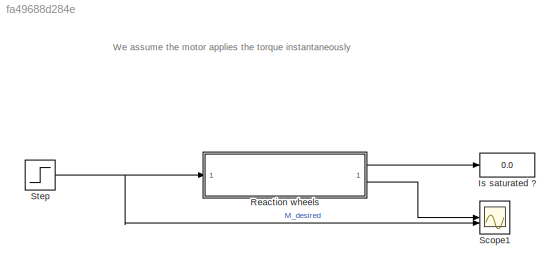
MODEL slx_fa49688d284e
KIND model
CONFIG AbsTol = auto
CONFIG EnableMultiTasking = off
CONFIG FixedStep = auto
CONFIG MaxStep = auto
CONFIG MinStep = auto
CONFIG RelTol = 1e-3
CONFIG SampleTimeConstraint = Unconstrained
CONFIG SolverName = VariableStepAuto
CONFIG StartTime = 0.0
CONFIG StopTime = 50
BLOCK [Display] Is saturated ?
  Decimation = 1
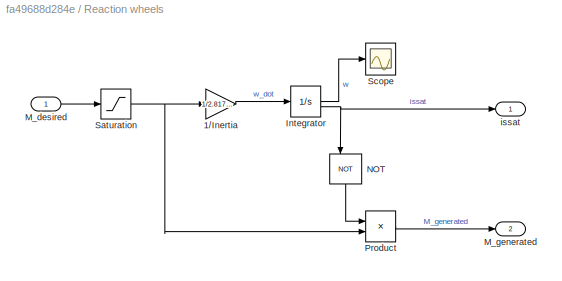
BLOCK [SubSystem] Reaction wheels
BLOCK [Gain] Reaction wheels/1//Inertia
  Gain = 1/2.817e-6
BLOCK [Integrator] Reaction wheels/Integrator
  LimitOutput = on
  LowerSaturationLimit = 0
  ShowSaturationPort = on
  UpperSaturationLimit = 1047.2
BLOCK [Inport] Reaction wheels/M_desired
BLOCK [Outport] Reaction wheels/M_generated
  Port = 2
BLOCK [Logic] Reaction wheels/NOT
  AllPortsSameDT = off
  IconShape = distinctive
  NameLocation = left
  Operator = NOT
  OutDataTypeStr = boolean
BLOCK [Product] Reaction wheels/Product
BLOCK [Saturate] Reaction wheels/Saturation
  LowerLimit = -0.23e-3
  UpperLimit = 0.23e-3
BLOCK [Scope] Reaction wheels/Scope
  ActiveDisplayYMaximum = 1080.3234548580435
  ActiveDisplayYMinimum = 816.5343595305518
  Floating = off
  GraphicalSettings = {"Style":{"BackgroundColor":[0.12941176470588237,0.12941176470588237,0.12941176470588237],"AxesColor":[0.07058823529411765,0.07058823529411765,0.07058823529411765],"LabelsColor":[0.8509803921568627,0.8509803921568627,0.8509803921568627],"PreserveColors":false,"Visible":[true,true,true],"LineStyle":["-","-","-"],"LineWidth":[1.5,1.5,1.5],"BarWidth":[0.9,0.9,0.9],"LineColor":["auto","auto","auto"],"...<+2198ch>
  MultipleDisplayCache = [{"MaxYLimMag":758.78594249201319,"MaxYLimReal":1080.3234548580435,"MinYLimMag":0,"MinYLimReal":816.5343595305518,"PlotAsMagnitudePhase":false,"ShowGrid":true,"ShowLegend":false,"Title":"%<SignalLabel>","YLabel":""}]
  NumInputPorts = 1
  ScopeFrameLocation = window
  WasSavedAsWebScope = on
  WindowPosition = [488.000000,222.000000,560.000000,420.000000,]
BLOCK [Outport] Reaction wheels/issat
BLOCK [Scope] Scope1
  ActiveDisplayYMaximum = 0.00012003626454827948
  ActiveDisplayYMinimum = -5.5214597297400712E-5
  DataLoggingVariableName = ScopeData1
  Floating = off
  GraphicalSettings = {"Style":{"BackgroundColor":[0.12941176470588237,0.12941176470588237,0.12941176470588237],"AxesColor":[0.07058823529411765,0.07058823529411765,0.07058823529411765],"LabelsColor":[0.8509803921568627,0.8509803921568627,0.8509803921568627],"PreserveColors":false,"Visible":[true,true,true,true,true,true],"LineStyle":["-","-","-","-","-","-"],"LineWidth":[1.5,1.5,1.5,1.5,1.5,1.5],"BarWidth":[0.9,0.9,0....<+2728ch>
  MultipleDisplayCache = [{"MaxYLimMag":0.00011250000000000001,"MaxYLimReal":0.00012003626454827948,"MinYLimMag":0,"MinYLimReal":-5.5214597297400712E-5,"PlotAsMagnitudePhase":false,"ShowGrid":true,"ShowLegend":true,"Title":"%<SignalLabel>","YLabel":""}]
  NumInputPorts = 2
  ScopeFrameLocation = window
  ShowLegend = on
  WasSavedAsWebScope = on
  WindowPosition = [1.000000,49.000000,1536.000000,793.000000,]
BLOCK [Step] Step
  After = [0.0001 0 0]
  SampleTime = 0
ANNOTATION (root): We assume the motor applies the torque instantaneously
LINE Reaction wheels/1//Inertia:1 -> Reaction wheels/Integrator:1
LINE Reaction wheels/Integrator:1 -> Reaction wheels/Scope:1
NET Reaction wheels/Integrator:2 -> Reaction wheels/NOT:1, Reaction wheels/issat:1
LINE Reaction wheels/M_desired:1 -> Reaction wheels/Saturation:1
LINE Reaction wheels/NOT:1 -> Reaction wheels/Product:1
LINE Reaction wheels/Product:1 -> Reaction wheels/M_generated:1
NET Reaction wheels/Saturation:1 -> Reaction wheels/1//Inertia:1, Reaction wheels/Product:2
LINE Reaction wheels:1 -> Is saturated ?:1
LINE Reaction wheels:2 -> Scope1:1
NET Step:1 -> Reaction wheels:1, Scope1:2
note: NET lines group one-source signal fan-out (src -> all destinations, sorted); 1:1 wires keep LINE
